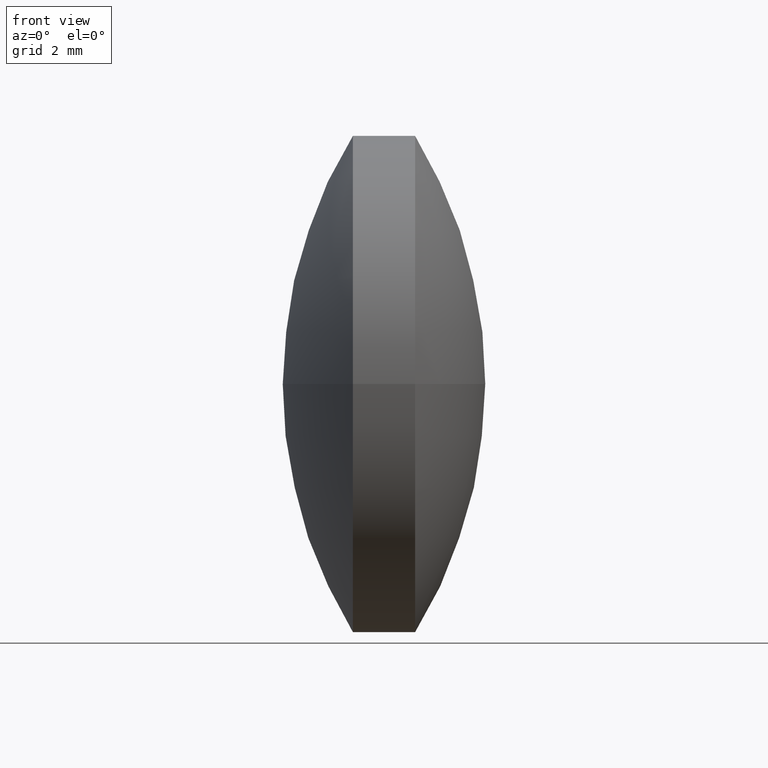
[diagram: clean part render]
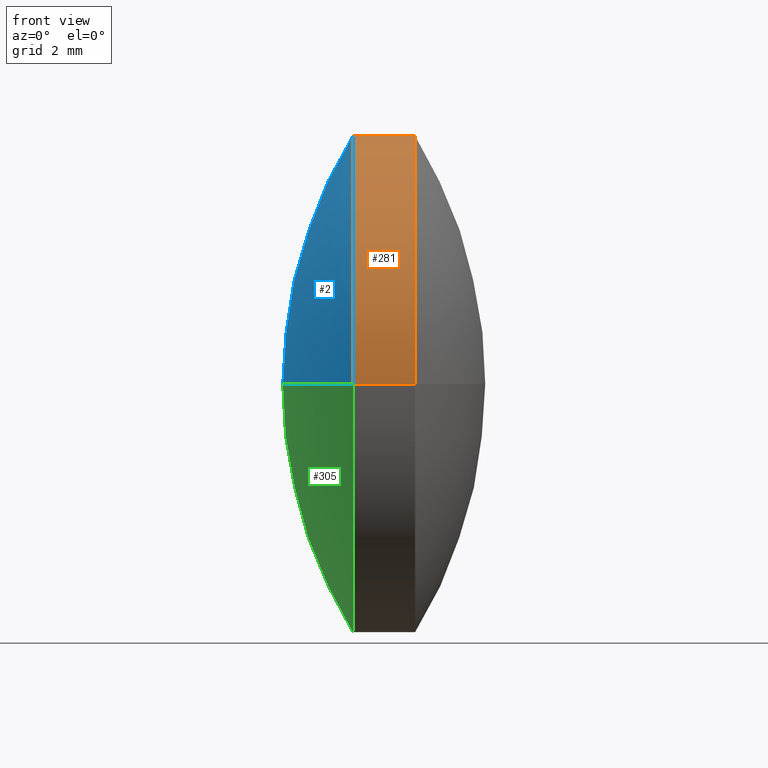
[diagram: same view with three faces highlighted in distinct colors, each labeled with its STEP entity id]
A machine part, front view with three faces highlighted in distinct colors.
Their STEP definitions:

[orange] entity #281 — the highlighted cylindrical surface (partial cylindrical patch) has radius 8 mm, axis along (-1, -0, -0).
#7 = CARTESIAN_POINT ( 'NONE',  ( 55.46185434624406700, 38.62432316421085700, 9.797174393178758600E-016 ) ) ;
#10 = AXIS2_PLACEMENT_3D ( 'NONE', #51, #102, #250 ) ;
#16 = VECTOR ( 'NONE', #287, 1000.000000000000000 ) ;
#27 = VERTEX_POINT ( 'NONE', #39 ) ;
#39 = CARTESIAN_POINT ( 'NONE',  ( 55.46185434624412400, 22.62432316421092800, 0.0000000000000000000 ) ) ;
#42 = VECTOR ( 'NONE', #244, 1000.000000000000000 ) ;
#43 = CIRCLE ( 'NONE', #161, 7.999999999999972500 ) ;
#48 = CYLINDRICAL_SURFACE ( 'NONE', #10, 7.999999999999976000 ) ;
#51 = CARTESIAN_POINT ( 'NONE',  ( 49.57645588697565100, 30.62432316421085700, 0.0000000000000000000 ) ) ;
#52 = CIRCLE ( 'NONE', #91, 7.999999999999979600 ) ;
#60 = ORIENTED_EDGE ( 'NONE', *, *, #147, .F. ) ;
#73 = DIRECTION ( 'NONE',  ( -1.000000000000000000, -3.453227301823334800E-015, -0.0000000000000000000 ) ) ;
#77 = CARTESIAN_POINT ( 'NONE',  ( 53.46185434624406700, 38.62432316421085700, 0.0000000000000000000 ) ) ;
#88 = EDGE_CURVE ( 'NONE', #128, #214, #52, .T. ) ;
#91 = AXIS2_PLACEMENT_3D ( 'NONE', #173, #73, #122 ) ;
#95 = VERTEX_POINT ( 'NONE', #7 ) ;
#98 = FACE_OUTER_BOUND ( 'NONE', #186, .T. ) ;
#102 = DIRECTION ( 'NONE',  ( -1.000000000000000000, -3.453227301823334800E-015, -0.0000000000000000000 ) ) ;
#119 = CARTESIAN_POINT ( 'NONE',  ( 49.57645588697562300, 38.62432316421082800, 9.797174393178796100E-016 ) ) ;
#122 = DIRECTION ( 'NONE',  ( 3.469446951953622900E-015, -1.000000000000000000, 0.0000000000000000000 ) ) ;
#123 = EDGE_CURVE ( 'NONE', #27, #95, #43, .T. ) ;
#125 = CARTESIAN_POINT ( 'NONE',  ( 49.57645588697568000, 22.62432316421087800, 0.0000000000000000000 ) ) ;
#128 = VERTEX_POINT ( 'NONE', #138 ) ;
#138 = CARTESIAN_POINT ( 'NONE',  ( 53.46185434624411700, 22.62432316421085000, -9.797174393178811900E-016 ) ) ;
#147 = EDGE_CURVE ( 'NONE', #27, #128, #158, .T. ) ;
#153 = DIRECTION ( 'NONE',  ( -1.000000000000000000, -3.453227301823334800E-015, -0.0000000000000000000 ) ) ;
#158 = LINE ( 'NONE', #125, #42 ) ;
#161 = AXIS2_PLACEMENT_3D ( 'NONE', #290, #153, #202 ) ;
#167 = ORIENTED_EDGE ( 'NONE', *, *, #193, .T. ) ;
#173 = CARTESIAN_POINT ( 'NONE',  ( 53.46185434624409500, 30.62432316421086800, 0.0000000000000000000 ) ) ;
#177 = LINE ( 'NONE', #119, #16 ) ;
#184 = ORIENTED_EDGE ( 'NONE', *, *, #123, .T. ) ;
#186 = EDGE_LOOP ( 'NONE', ( #184, #167, #266, #60 ) ) ;
#193 = EDGE_CURVE ( 'NONE', #95, #214, #177, .T. ) ;
#202 = DIRECTION ( 'NONE',  ( 3.469446951953626000E-015, -1.000000000000000000, 0.0000000000000000000 ) ) ;
#214 = VERTEX_POINT ( 'NONE', #77 ) ;
#244 = DIRECTION ( 'NONE',  ( -1.000000000000000000, -3.453227301823334800E-015, -0.0000000000000000000 ) ) ;
#250 = DIRECTION ( 'NONE',  ( 3.469446951953624400E-015, -1.000000000000000000, 0.0000000000000000000 ) ) ;
#266 = ORIENTED_EDGE ( 'NONE', *, *, #88, .F. ) ;
#281 = ADVANCED_FACE ( 'NONE', ( #98 ), #48, .T. ) ;
#287 = DIRECTION ( 'NONE',  ( -1.000000000000000000, -3.453227301823334800E-015, -0.0000000000000000000 ) ) ;
#290 = CARTESIAN_POINT ( 'NONE',  ( 55.46185434624409500, 30.62432316421087500, 0.0000000000000000000 ) ) ;

[blue] entity #2 — the highlighted spherical surface has radius 15.3182 mm.
#2 = ADVANCED_FACE ( 'NONE', ( #63 ), #196, .T. ) ;
#18 = DIRECTION ( 'NONE',  ( -3.623864231530019900E-015, 1.000000000000000000, 0.0000000000000000000 ) ) ;
#50 = DIRECTION ( 'NONE',  ( -4.228983761906197800E-031, 1.224646799147353200E-016, -1.000000000000000000 ) ) ;
#52 = CIRCLE ( 'NONE', #91, 7.999999999999979600 ) ;
#53 = DIRECTION ( 'NONE',  ( -0.0000000000000000000, 0.0000000000000000000, 1.000000000000000000 ) ) ;
#63 = FACE_OUTER_BOUND ( 'NONE', #67, .T. ) ;
#67 = EDGE_LOOP ( 'NONE', ( #90, #68, #145 ) ) ;
#68 = ORIENTED_EDGE ( 'NONE', *, *, #88, .T. ) ;
#71 = AXIS2_PLACEMENT_3D ( 'NONE', #165, #211, #18 ) ;
#73 = DIRECTION ( 'NONE',  ( -1.000000000000000000, -3.453227301823334800E-015, -0.0000000000000000000 ) ) ;
#76 = DIRECTION ( 'NONE',  ( 0.0000000000000000000, 1.000000000000000000, 1.224646799147353200E-016 ) ) ;
#77 = CARTESIAN_POINT ( 'NONE',  ( 53.46185434624406700, 38.62432316421085700, 0.0000000000000000000 ) ) ;
#78 = DIRECTION ( 'NONE',  ( 1.000000000000000000, 0.0000000000000000000, 0.0000000000000000000 ) ) ;
#88 = EDGE_CURVE ( 'NONE', #128, #214, #52, .T. ) ;
#90 = ORIENTED_EDGE ( 'NONE', *, *, #115, .F. ) ;
#91 = AXIS2_PLACEMENT_3D ( 'NONE', #173, #73, #122 ) ;
#100 = CARTESIAN_POINT ( 'NONE',  ( 51.20686006052977000, 30.62432316421083600, 0.0000000000000000000 ) ) ;
#115 = EDGE_CURVE ( 'NONE', #128, #151, #260, .T. ) ;
#122 = DIRECTION ( 'NONE',  ( 3.469446951953622900E-015, -1.000000000000000000, 0.0000000000000000000 ) ) ;
#128 = VERTEX_POINT ( 'NONE', #138 ) ;
#138 = CARTESIAN_POINT ( 'NONE',  ( 53.46185434624411700, 22.62432316421085000, -9.797174393178811900E-016 ) ) ;
#145 = ORIENTED_EDGE ( 'NONE', *, *, #282, .T. ) ;
#151 = VERTEX_POINT ( 'NONE', #100 ) ;
#165 = CARTESIAN_POINT ( 'NONE',  ( 66.52508052482697600, 30.62432316421088500, 0.0000000000000000000 ) ) ;
#169 = AXIS2_PLACEMENT_3D ( 'NONE', #227, #53, #78 ) ;
#173 = CARTESIAN_POINT ( 'NONE',  ( 53.46185434624409500, 30.62432316421086800, 0.0000000000000000000 ) ) ;
#196 = SPHERICAL_SURFACE ( 'NONE', #71, 15.31822046429720900 ) ;
#208 = AXIS2_PLACEMENT_3D ( 'NONE', #234, #50, #76 ) ;
#211 = DIRECTION ( 'NONE',  ( -0.0000000000000000000, 0.0000000000000000000, -1.000000000000000000 ) ) ;
#214 = VERTEX_POINT ( 'NONE', #77 ) ;
#227 = CARTESIAN_POINT ( 'NONE',  ( 66.52508052482697600, 30.62432316421088500, 0.0000000000000000000 ) ) ;
#234 = CARTESIAN_POINT ( 'NONE',  ( 66.52508052482697600, 30.62432316421088500, 0.0000000000000000000 ) ) ;
#257 = CIRCLE ( 'NONE', #169, 15.31822046429720500 ) ;
#260 = CIRCLE ( 'NONE', #208, 15.31822046429720900 ) ;
#282 = EDGE_CURVE ( 'NONE', #214, #151, #257, .T. ) ;

[green] entity #305 — the highlighted spherical surface has radius 15.3182 mm.
#3 = ORIENTED_EDGE ( 'NONE', *, *, #215, .T. ) ;
#9 = FACE_OUTER_BOUND ( 'NONE', #11, .T. ) ;
#11 = EDGE_LOOP ( 'NONE', ( #3, #207, #22 ) ) ;
#22 = ORIENTED_EDGE ( 'NONE', *, *, #282, .F. ) ;
#45 = DIRECTION ( 'NONE',  ( 3.469446951953622900E-015, -1.000000000000000000, 0.0000000000000000000 ) ) ;
#47 = CARTESIAN_POINT ( 'NONE',  ( 53.46185434624409500, 30.62432316421086800, 0.0000000000000000000 ) ) ;
#50 = DIRECTION ( 'NONE',  ( -4.228983761906197800E-031, 1.224646799147353200E-016, -1.000000000000000000 ) ) ;
#53 = DIRECTION ( 'NONE',  ( -0.0000000000000000000, 0.0000000000000000000, 1.000000000000000000 ) ) ;
#76 = DIRECTION ( 'NONE',  ( 0.0000000000000000000, 1.000000000000000000, 1.224646799147353200E-016 ) ) ;
#77 = CARTESIAN_POINT ( 'NONE',  ( 53.46185434624406700, 38.62432316421085700, 0.0000000000000000000 ) ) ;
#78 = DIRECTION ( 'NONE',  ( 1.000000000000000000, 0.0000000000000000000, 0.0000000000000000000 ) ) ;
#100 = CARTESIAN_POINT ( 'NONE',  ( 51.20686006052977000, 30.62432316421083600, 0.0000000000000000000 ) ) ;
#115 = EDGE_CURVE ( 'NONE', #128, #151, #260, .T. ) ;
#128 = VERTEX_POINT ( 'NONE', #138 ) ;
#138 = CARTESIAN_POINT ( 'NONE',  ( 53.46185434624411700, 22.62432316421085000, -9.797174393178811900E-016 ) ) ;
#151 = VERTEX_POINT ( 'NONE', #100 ) ;
#169 = AXIS2_PLACEMENT_3D ( 'NONE', #227, #53, #78 ) ;
#194 = SPHERICAL_SURFACE ( 'NONE', #237, 15.31822046429720900 ) ;
#204 = DIRECTION ( 'NONE',  ( -0.0000000000000000000, 0.0000000000000000000, -1.000000000000000000 ) ) ;
#207 = ORIENTED_EDGE ( 'NONE', *, *, #115, .T. ) ;
#208 = AXIS2_PLACEMENT_3D ( 'NONE', #234, #50, #76 ) ;
#214 = VERTEX_POINT ( 'NONE', #77 ) ;
#215 = EDGE_CURVE ( 'NONE', #214, #128, #226, .T. ) ;
#222 = DIRECTION ( 'NONE',  ( -1.000000000000000000, -3.453227301823334800E-015, -0.0000000000000000000 ) ) ;
#226 = CIRCLE ( 'NONE', #258, 7.999999999999979600 ) ;
#227 = CARTESIAN_POINT ( 'NONE',  ( 66.52508052482697600, 30.62432316421088500, 0.0000000000000000000 ) ) ;
#229 = DIRECTION ( 'NONE',  ( -3.623864231530019900E-015, 1.000000000000000000, 0.0000000000000000000 ) ) ;
#234 = CARTESIAN_POINT ( 'NONE',  ( 66.52508052482697600, 30.62432316421088500, 0.0000000000000000000 ) ) ;
#237 = AXIS2_PLACEMENT_3D ( 'NONE', #293, #204, #229 ) ;
#257 = CIRCLE ( 'NONE', #169, 15.31822046429720500 ) ;
#258 = AXIS2_PLACEMENT_3D ( 'NONE', #47, #222, #45 ) ;
#260 = CIRCLE ( 'NONE', #208, 15.31822046429720900 ) ;
#282 = EDGE_CURVE ( 'NONE', #214, #151, #257, .T. ) ;
#293 = CARTESIAN_POINT ( 'NONE',  ( 66.52508052482697600, 30.62432316421088500, 0.0000000000000000000 ) ) ;
#305 = ADVANCED_FACE ( 'NONE', ( #9 ), #194, .T. ) ;